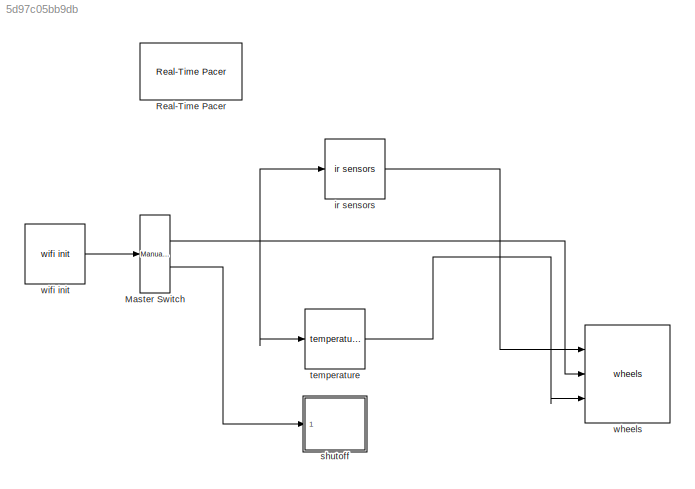
MODEL slx_5d97c05bb9db
KIND model
CONFIG AbsTol = auto
CONFIG EnableMultiTasking = off
CONFIG FixedStep = auto
CONFIG MaxStep = auto
CONFIG MinStep = auto
CONFIG RelTol = 1e-3
CONFIG SampleTimeConstraint = Unconstrained
CONFIG Solver = VariableStepAuto
CONFIG SolverName = VariableStepAuto
CONFIG StartTime = 0.0
CONFIG StopTime = inf
BLOCK [Reference] Master Switch  REF=simulink/Signal
Routing/Manual
Variant Sink
  Ports = [1, 2]
  SourceBlock = simulink/Signal\nRouting/Manual\nVariant Sink
  SourceProductBaseCode = SL
  SourceProductName = Simulink
  SourceType = ManualVariantSink
BLOCK [Reference] Real-Time Pacer  REF=realtime_pacer_lib/Real-Time Pacer
  Ports = []
  SourceBlock = realtime_pacer_lib/Real-Time Pacer
  SourceType = RealTime_Pacer
BLOCK [Reference] ir sensors  REF=DigitalControlLib2/ir sensors
  Ports = [1, 1]
  SourceBlock = DigitalControlLib2/ir sensors
  SourceType = SubSystem
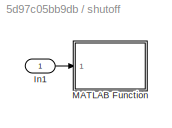
BLOCK [SubSystem] shutoff
  Ports = [1]
  RequestExecContextInheritance = off
  Variant = off
BLOCK [Inport] shutoff/In1
  IconDisplay = Port number
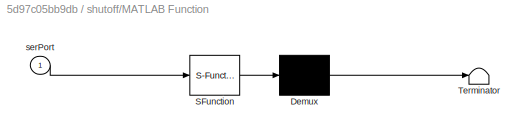
BLOCK [SubSystem] shutoff/MATLAB Function
  ErrorFcn = Stateflow.Translate.translate
  PermitHierarchicalResolution = ExplicitOnly
  Ports = [1]
  RequestExecContextInheritance = off
  SFBlockType = MATLAB Function
  TreatAsAtomicUnit = on
  Variant = off
BLOCK [Demux] shutoff/MATLAB Function/ Demux 
  Outputs = 1
  Ports = [1, 1]
BLOCK [S-Function] shutoff/MATLAB Function/ SFunction 
  EnableBusSupport = off
  FunctionName = sf_sfun
  PortCounts = [1 1]
  Ports = [1, 1]
  SFcnIsStateOwnerBlock = off
  SFunctionDeploymentMode = off
  Tag = Stateflow S-Function Test_Case_2 2
BLOCK [Terminator] shutoff/MATLAB Function/ Terminator 
BLOCK [Inport] shutoff/MATLAB Function/serPort
  IconDisplay = Port number
BLOCK [Reference] temperature  REF=DigitalControlLib2/temperature
  Ports = [1, 1]
  SourceBlock = DigitalControlLib2/temperature
  SourceType = SubSystem
BLOCK [Reference] wheels  REF=DigitalControlLib2/wheels
  Ports = [3]
  SourceBlock = DigitalControlLib2/wheels
  SourceType = SubSystem
BLOCK [Reference] wifi init  REF=DigitalControlLib2/wifi init
  Ports = [0, 1]
  SourceBlock = DigitalControlLib2/wifi init
  SourceType = SubSystem
NET Master Switch:1 -> ir sensors:1, temperature:1, wheels:2
LINE Master Switch:2 -> shutoff:1
LINE ir sensors:1 -> wheels:1
LINE shutoff/In1:1 -> shutoff/MATLAB Function:1
LINE temperature:1 -> wheels:3
LINE wifi init:1 -> Master Switch:1
note: NET lines group one-source signal fan-out (src -> all destinations, sorted); 1:1 wires keep LINE
CHART shutoff/MATLAB Function states=1 transitions=1
  STATE_LABEL 'eML_blk_kernel()'
  STATE_LABEL "SCRIPT:\nfunction PowerOffRoomba(serPort)\n% PowerOffRoomba(serPort)\n% Power down robot.  \n% serPort is a serial port object created by RoombaInit\n% Note that the physical power button does not work, and power saving and charging will not\n% occur once the robot is initialized with RoombaInit.  There is a real\n% risk of deeply discharging the Roomba's battery causing permanent\n% damage.  Always use t...<+146ch>"
